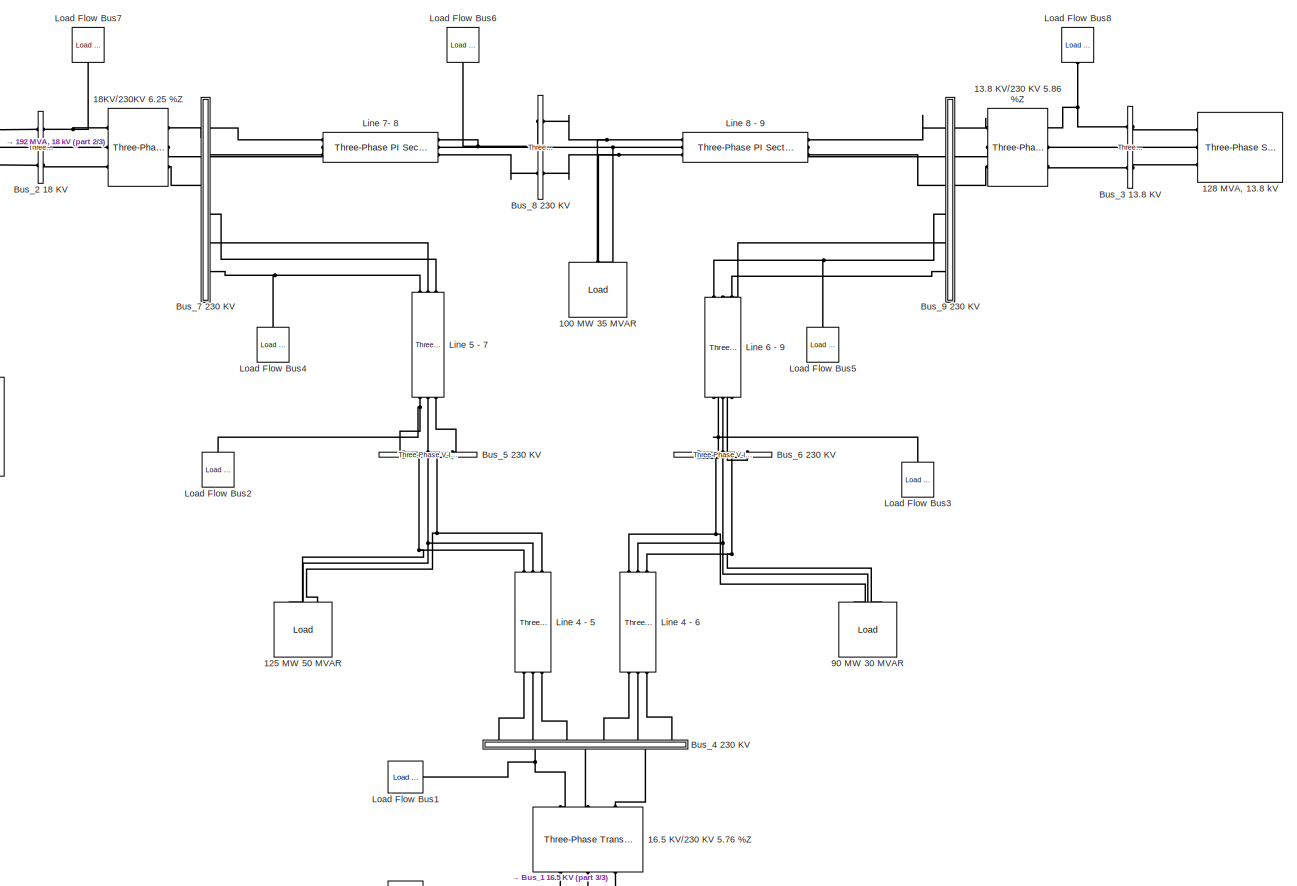
[diagram: root canvas - part 1/3, most of the canvas]
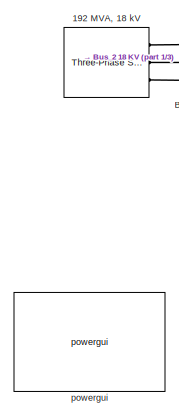
[diagram: root canvas - part 2/3, top left region]
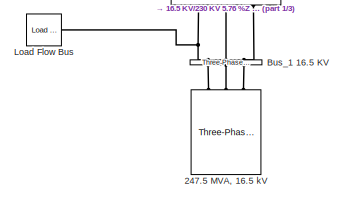
[diagram: root canvas - part 3/3, bottom center region]
MODEL slx_fed9710955e4
KIND model
BLOCK [Reference]  Line 4 - 6  REF=powerlib/Elements/Three-Phase
PI Section Line
  AttributesFormatString = \n
  Capacitances = [7.922e-9 4.74e-9]
  Frequency = 60
  Inductances = [ 1.29e-3  3.22e-3]
  LConnTagsString = a|b|c
  Length = 100
  Ports = [0, 0, 0, 0, 0, 3, 3]
  RConnTagsString = A|B|C
  Resistances = [ 0.08993 0.224825]
  SourceBlock = powerlib/Elements/Three-Phase\nPI Section Line
  SourceType = Three-Phase PI Section Line
BLOCK [Reference]  Line 6 - 9  REF=powerlib/Elements/Three-Phase
PI Section Line
  AttributesFormatString = \n
  Capacitances = [17.95e-9 10.55e-9]
  Frequency = 60
  Inductances = [ 2.38e-3  6.09e-3]
  LConnTagsString = a|b|c
  Length = 100
  Ports = [0, 0, 0, 0, 0, 3, 3]
  RConnTagsString = A|B|C
  Resistances = [ 0.20631 0.5157]
  SourceBlock = powerlib/Elements/Three-Phase\nPI Section Line
  SourceType = Three-Phase PI Section Line
BLOCK [Reference] 100 MW 35 MVAR  REF=jailib/Load  (lib defined in slx_75b92f426bfb)
  FunctionWithSeparateData = off
  GeneratePreprocessorConditionals = off
  Ports = [0, 0, 0, 0, 0, 3]
  ShowPortLabels = FromPortBlockName
  SourceBlock = jailib/Load
  SystemSampleTime = -1
BLOCK [Reference] 125 MW 50 MVAR  REF=jailib/Load  (lib defined in slx_75b92f426bfb)
  FunctionWithSeparateData = off
  GeneratePreprocessorConditionals = off
  Ports = [0, 0, 0, 0, 0, 3]
  ShowPortLabels = FromPortBlockName
  SourceBlock = jailib/Load
  SystemSampleTime = -1
BLOCK [Reference] 128 MVA, 13.8 kV  REF=powerlib/Electrical
Sources/Three-Phase Source
  BaseVoltage = 13.8e3
  BusType = PV
  Frequency = 60
  Inductance = 0.0140
  InternalConnection = Yg
  PhaseAngle = 0
  Ports = [0, 0, 0, 0, 0, 0, 3]
  Pref = 85000000
  Qmax = inf
  Qmin = -inf
  Qref = 0
  Resistance = 0.529
  ShortCircuitLevel = 128e6
  SourceBlock = powerlib/Electrical\nSources/Three-Phase Source
  SourceType = Three-Phase Source
  SpecifyImpedance = on
  Voltage = 13800
  XRratio = 100000
BLOCK [Reference] 13.8 KV//230 KV 5.86 %Z  REF=powerlib/Elements/Three-Phase
Transformer
(Two Windings)
  BreakLoop = off
  DataFile = 'hysteresis'
  DataType = off
  Hysteresis = off
  InitialFluxes = [ 0.8 , -0.8 , 0.7 ]
  Lm = 500
  Measurements = None
  MoreParameters = off
  NominalPower = [ 100e6 , 60 ]
  Ports = [0, 0, 0, 0, 0, 3, 3]
  Rm = 500
  Saturation = [ 0,0 ; 0.0024,1.2 ; 1.0,1.52 ]
  SetInitialFlux = off
  SetSaturation = off
  SourceBlock = powerlib/Elements/Three-Phase\nTransformer\n(Two Windings)
  SourceType = Three-Phase Transformer (Two Windings)
  TransfoNumber = 1
  UNITS = pu
  Winding1 = [ 13.8e3 , 1e-6 , 0 ]
  Winding1Connection = Yg
  Winding2 = [ 230e3 , 1e-6, 0.0586 ]
  Winding2Connection = Yg
BLOCK [Reference] 16.5 KV//230 KV 5.76 %Z       REF=powerlib/Elements/Three-Phase
Transformer
(Two Windings)
  BreakLoop = off
  DataFile = 'hysteresis'
  DataType = off
  Hysteresis = off
  InitialFluxes = [ 0.8 , -0.8 , 0.7 ]
  Lm = 500
  Measurements = None
  MoreParameters = off
  NominalPower = [ 100e6 , 60 ]
  Ports = [0, 0, 0, 0, 0, 3, 3]
  Rm = 500
  Saturation = [ 0,0 ; 0.0024,1.2 ; 1.0,1.52 ]
  SetInitialFlux = off
  SetSaturation = off
  SourceBlock = powerlib/Elements/Three-Phase\nTransformer\n(Two Windings)
  SourceType = Three-Phase Transformer (Two Windings)
  TransfoNumber = 1
  UNITS = pu
  Winding1 = [ 16.5e3 , 1e-6, 0 ]
  Winding1Connection = Yg
  Winding2 = [ 230e3 ,1e-6, 0.0576 ]
  Winding2Connection = Yg
BLOCK [Reference] 18KV//230KV 6.25 %Z  REF=powerlib/Elements/Three-Phase
Transformer
(Two Windings)
  BreakLoop = off
  DataFile = 'hysteresis'
  DataType = off
  Hysteresis = off
  InitialFluxes = [ 0.8 , -0.8 , 0.7 ]
  Lm = 500
  Measurements = None
  MoreParameters = off
  NominalPower = [ 100e6 , 60 ]
  Ports = [0, 0, 0, 0, 0, 3, 3]
  Rm = 500
  Saturation = [ 0,0 ; 0.0024,1.2 ; 1.0,1.52 ]
  SetInitialFlux = off
  SetSaturation = off
  SourceBlock = powerlib/Elements/Three-Phase\nTransformer\n(Two Windings)
  SourceType = Three-Phase Transformer (Two Windings)
  TransfoNumber = 1
  UNITS = pu
  Winding1 = [ 18e3 , 1e-6 , 0]
  Winding1Connection = Yg
  Winding2 = [ 230e3 , 1e-6, 0.0625 ]
  Winding2Connection = Yg
BLOCK [Reference] 192 MVA, 18 kV  REF=powerlib/Electrical
Sources/Three-Phase Source
  BaseVoltage = 18e3
  BusType = PV
  Frequency = 60
  Inductance = 0.0140
  InternalConnection = Yg
  PhaseAngle = 0
  Ports = [0, 0, 0, 0, 0, 0, 3]
  Pref = 163000000
  Qmax = inf
  Qmin = -inf
  Qref = 0
  Resistance = 0.529
  ShortCircuitLevel = 192e6
  SourceBlock = powerlib/Electrical\nSources/Three-Phase Source
  SourceType = Three-Phase Source
  SpecifyImpedance = on
  Voltage = 18000
  XRratio = 100000
BLOCK [Reference] 247.5 MVA, 16.5 kV  REF=powerlib/Electrical
Sources/Three-Phase Source
  BaseVoltage = 16.5e3
  BusType = swing
  Frequency = 60
  Inductance = 0.0140
  InternalConnection = Yg
  PhaseAngle = 0
  Ports = [0, 0, 0, 0, 0, 0, 3]
  Pref = 0
  Qmax = Inf
  Qmin = -Inf
  Qref = 0
  Resistance = 0.529
  ShortCircuitLevel = 247.5e6
  SourceBlock = powerlib/Electrical\nSources/Three-Phase Source
  SourceType = Three-Phase Source
  SpecifyImpedance = on
  Voltage = 16500
  XRratio = 100000
BLOCK [Reference] 90 MW 30 MVAR  REF=jailib/Load  (lib defined in slx_75b92f426bfb)
  FunctionWithSeparateData = off
  GeneratePreprocessorConditionals = off
  Ports = [0, 0, 0, 0, 0, 3]
  ShowPortLabels = FromPortBlockName
  SourceBlock = jailib/Load
  SystemSampleTime = -1
BLOCK [Reference] Bus_1 16.5 KV  REF=powerlib/Measurements/Three-Phase
V-I Measurement
  CurrentMeasurement = yes
  Ipu = on
  LabelI = Iabc_1
  LabelV = Vabc_1
  OutputType = Complex
  PSBequivalent = 0
  Pbase = 100e6
  PhasorSimulation = off
  Ports = [0, 0, 0, 0, 0, 3, 3]
  SetLabelI = on
  SetLabelV = on
  SourceBlock = powerlib/Measurements/Three-Phase\nV-I Measurement
  SourceType = Three-Phase VI Measurement
  Vbase = 16.5e3
  VoltageMeasurement = phase-to-ground
  Vpu = on
  VpuLL = off
BLOCK [Reference] Bus_2 18 KV  REF=powerlib/Measurements/Three-Phase
V-I Measurement
  CurrentMeasurement = yes
  Ipu = on
  LabelI = Iabc_2
  LabelV = Vabc_2
  OutputType = Complex
  PSBequivalent = 0
  Pbase = 100e6
  PhasorSimulation = off
  Ports = [0, 0, 0, 0, 0, 3, 3]
  SetLabelI = on
  SetLabelV = on
  SourceBlock = powerlib/Measurements/Three-Phase\nV-I Measurement
  SourceType = Three-Phase VI Measurement
  Vbase = 18e3
  VoltageMeasurement = phase-to-ground
  Vpu = on
  VpuLL = off
BLOCK [Reference] Bus_3 13.8 KV  REF=powerlib/Measurements/Three-Phase
V-I Measurement
  CurrentMeasurement = yes
  Ipu = on
  LabelI = Iabc_3
  LabelV = Vabc_3
  OutputType = Complex
  PSBequivalent = 0
  Pbase = 100e6
  PhasorSimulation = off
  Ports = [0, 0, 0, 0, 0, 3, 3]
  SetLabelI = on
  SetLabelV = on
  SourceBlock = powerlib/Measurements/Three-Phase\nV-I Measurement
  SourceType = Three-Phase VI Measurement
  Vbase = 13.8e3
  VoltageMeasurement = phase-to-ground
  Vpu = on
  VpuLL = off
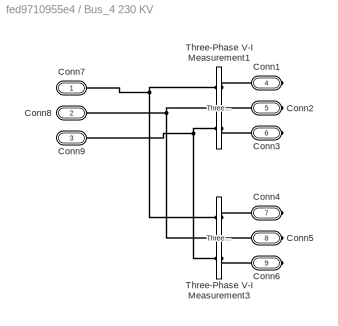
BLOCK [SubSystem] Bus_4 230 KV
  FunctionWithSeparateData = off
  MaskHideContents = off
  MinAlgLoopOccurrences = off
  Opaque = off
  Ports = [0, 0, 0, 0, 0, 3, 6]
  PropExecContextOutsideSubsystem = off
  RTWSystemCode = Auto
  RequestExecContextInheritance = off
BLOCK [PMIOPort] Bus_4 230 KV/Conn1
  Port = 4
  Side = Right
BLOCK [PMIOPort] Bus_4 230 KV/Conn2
  Port = 5
  Side = Right
BLOCK [PMIOPort] Bus_4 230 KV/Conn3
  Port = 6
  Side = Right
BLOCK [PMIOPort] Bus_4 230 KV/Conn4
  Port = 7
  Side = Right
BLOCK [PMIOPort] Bus_4 230 KV/Conn5
  Port = 8
  Side = Right
BLOCK [PMIOPort] Bus_4 230 KV/Conn6
  Port = 9
  Side = Right
BLOCK [PMIOPort] Bus_4 230 KV/Conn7
  Port = 1
  Side = Left
BLOCK [PMIOPort] Bus_4 230 KV/Conn8
  Port = 2
  Side = Left
BLOCK [PMIOPort] Bus_4 230 KV/Conn9
  Port = 3
  Side = Left
BLOCK [Reference] Bus_4 230 KV/Three-Phase V-I Measurement1  REF=powerlib/Measurements/Three-Phase
V-I Measurement
  CurrentMeasurement = yes
  Ipu = on
  LabelI = Iabc_45
  LabelV = Vabc_45
  OutputType = Complex
  PSBequivalent = 0
  Pbase = 100e6
  PhasorSimulation = off
  Ports = [0, 0, 0, 0, 0, 3, 3]
  SetLabelI = on
  SetLabelV = on
  SourceBlock = powerlib/Measurements/Three-Phase\nV-I Measurement
  SourceType = Three-Phase VI Measurement
  Vbase = 230e3
  VoltageMeasurement = phase-to-ground
  Vpu = on
  VpuLL = off
BLOCK [Reference] Bus_4 230 KV/Three-Phase V-I Measurement3  REF=powerlib/Measurements/Three-Phase
V-I Measurement
  CurrentMeasurement = yes
  Ipu = on
  LabelI = Iabc_46
  LabelV = Vabc_46
  OutputType = Complex
  PSBequivalent = 0
  Pbase = 100e6
  PhasorSimulation = off
  Ports = [0, 0, 0, 0, 0, 3, 3]
  SetLabelI = on
  SetLabelV = on
  SourceBlock = powerlib/Measurements/Three-Phase\nV-I Measurement
  SourceType = Three-Phase VI Measurement
  Vbase = 230e3
  VoltageMeasurement = phase-to-ground
  Vpu = on
  VpuLL = off
BLOCK [Reference] Bus_5 230 KV  REF=powerlib/Measurements/Three-Phase
V-I Measurement
  CurrentMeasurement = yes
  Ipu = on
  LabelI = Iabc_5
  LabelV = Vabc_5
  OutputType = Complex
  PSBequivalent = 0
  Pbase = 100e6
  PhasorSimulation = off
  Ports = [0, 0, 0, 0, 0, 3, 3]
  SetLabelI = on
  SetLabelV = on
  SourceBlock = powerlib/Measurements/Three-Phase\nV-I Measurement
  SourceType = Three-Phase VI Measurement
  Vbase = 230e3
  VoltageMeasurement = phase-to-ground
  Vpu = on
  VpuLL = off
BLOCK [Reference] Bus_6 230 KV  REF=powerlib/Measurements/Three-Phase
V-I Measurement
  CurrentMeasurement = yes
  Ipu = on
  LabelI = Iabc_6
  LabelV = Vabc_6
  OutputType = Complex
  PSBequivalent = 0
  Pbase = 100e6
  PhasorSimulation = off
  Ports = [0, 0, 0, 0, 0, 3, 3]
  SetLabelI = on
  SetLabelV = on
  SourceBlock = powerlib/Measurements/Three-Phase\nV-I Measurement
  SourceType = Three-Phase VI Measurement
  Vbase = 230e3
  VoltageMeasurement = phase-to-ground
  Vpu = on
  VpuLL = off
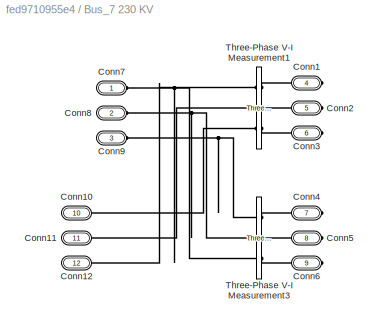
BLOCK [SubSystem] Bus_7 230 KV
  FunctionWithSeparateData = off
  MaskHideContents = off
  MinAlgLoopOccurrences = off
  Opaque = off
  Ports = [0, 0, 0, 0, 0, 6, 6]
  PropExecContextOutsideSubsystem = off
  RTWSystemCode = Auto
  RequestExecContextInheritance = off
BLOCK [PMIOPort] Bus_7 230 KV/Conn1
  Port = 4
  Side = Right
BLOCK [PMIOPort] Bus_7 230 KV/Conn10
  Port = 10
  Side = Left
BLOCK [PMIOPort] Bus_7 230 KV/Conn11
  Port = 11
  Side = Left
BLOCK [PMIOPort] Bus_7 230 KV/Conn12
  Port = 12
  Side = Left
BLOCK [PMIOPort] Bus_7 230 KV/Conn2
  Port = 5
  Side = Right
BLOCK [PMIOPort] Bus_7 230 KV/Conn3
  Port = 6
  Side = Right
BLOCK [PMIOPort] Bus_7 230 KV/Conn4
  Port = 7
  Side = Right
BLOCK [PMIOPort] Bus_7 230 KV/Conn5
  Port = 8
  Side = Right
BLOCK [PMIOPort] Bus_7 230 KV/Conn6
  Port = 9
  Side = Right
BLOCK [PMIOPort] Bus_7 230 KV/Conn7
  Port = 1
  Side = Left
BLOCK [PMIOPort] Bus_7 230 KV/Conn8
  Port = 2
  Side = Left
BLOCK [PMIOPort] Bus_7 230 KV/Conn9
  Port = 3
  Side = Left
BLOCK [Reference] Bus_7 230 KV/Three-Phase V-I Measurement1  REF=powerlib/Measurements/Three-Phase
V-I Measurement
  CurrentMeasurement = yes
  Ipu = on
  LabelI = Iabc_7
  LabelV = Vabc_7
  OutputType = Complex
  PSBequivalent = 0
  Pbase = 100e6
  PhasorSimulation = off
  Ports = [0, 0, 0, 0, 0, 3, 3]
  SetLabelI = on
  SetLabelV = on
  SourceBlock = powerlib/Measurements/Three-Phase\nV-I Measurement
  SourceType = Three-Phase VI Measurement
  Vbase = 230e3
  VoltageMeasurement = phase-to-ground
  Vpu = on
  VpuLL = off
BLOCK [Reference] Bus_7 230 KV/Three-Phase V-I Measurement3  REF=powerlib/Measurements/Three-Phase
V-I Measurement
  CurrentMeasurement = yes
  Ipu = on
  LabelI = Iab
  LabelV = Vab
  OutputType = Complex
  PSBequivalent = 0
  Pbase = 100e6
  PhasorSimulation = off
  Ports = [0, 0, 0, 0, 0, 3, 3]
  SetLabelI = on
  SetLabelV = on
  SourceBlock = powerlib/Measurements/Three-Phase\nV-I Measurement
  SourceType = Three-Phase VI Measurement
  Vbase = 230e3
  VoltageMeasurement = phase-to-ground
  Vpu = on
  VpuLL = off
BLOCK [Reference] Bus_8 230 KV  REF=powerlib/Measurements/Three-Phase
V-I Measurement
  CurrentMeasurement = yes
  Ipu = on
  LabelI = Iabc_8
  LabelV = Vabc_8
  OutputType = Complex
  PSBequivalent = 0
  Pbase = 100e6
  PhasorSimulation = off
  Ports = [0, 0, 0, 0, 0, 3, 3]
  SetLabelI = on
  SetLabelV = on
  SourceBlock = powerlib/Measurements/Three-Phase\nV-I Measurement
  SourceType = Three-Phase VI Measurement
  Vbase = 230e3
  VoltageMeasurement = phase-to-ground
  Vpu = on
  VpuLL = off
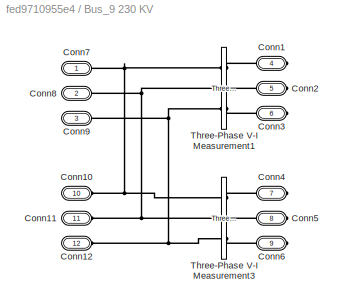
BLOCK [SubSystem] Bus_9 230 KV
  FunctionWithSeparateData = off
  MaskHideContents = off
  MinAlgLoopOccurrences = off
  Opaque = off
  Ports = [0, 0, 0, 0, 0, 6, 6]
  PropExecContextOutsideSubsystem = off
  RTWSystemCode = Auto
  RequestExecContextInheritance = off
BLOCK [PMIOPort] Bus_9 230 KV/Conn1
  Port = 4
  Side = Right
BLOCK [PMIOPort] Bus_9 230 KV/Conn10
  Port = 10
  Side = Left
BLOCK [PMIOPort] Bus_9 230 KV/Conn11
  Port = 11
  Side = Left
BLOCK [PMIOPort] Bus_9 230 KV/Conn12
  Port = 12
  Side = Left
BLOCK [PMIOPort] Bus_9 230 KV/Conn2
  Port = 5
  Side = Right
BLOCK [PMIOPort] Bus_9 230 KV/Conn3
  Port = 6
  Side = Right
BLOCK [PMIOPort] Bus_9 230 KV/Conn4
  Port = 7
  Side = Right
BLOCK [PMIOPort] Bus_9 230 KV/Conn5
  Port = 8
  Side = Right
BLOCK [PMIOPort] Bus_9 230 KV/Conn6
  Port = 9
  Side = Right
BLOCK [PMIOPort] Bus_9 230 KV/Conn7
  Port = 1
  Side = Left
BLOCK [PMIOPort] Bus_9 230 KV/Conn8
  Port = 2
  Side = Left
BLOCK [PMIOPort] Bus_9 230 KV/Conn9
  Port = 3
  Side = Left
BLOCK [Reference] Bus_9 230 KV/Three-Phase V-I Measurement1  REF=powerlib/Measurements/Three-Phase
V-I Measurement
  CurrentMeasurement = yes
  Ipu = on
  LabelI = Iabc_9
  LabelV = Vabc_9
  OutputType = Complex
  PSBequivalent = 0
  Pbase = 100e6
  PhasorSimulation = off
  Ports = [0, 0, 0, 0, 0, 3, 3]
  SetLabelI = on
  SetLabelV = on
  SourceBlock = powerlib/Measurements/Three-Phase\nV-I Measurement
  SourceType = Three-Phase VI Measurement
  Vbase = 230e3
  VoltageMeasurement = phase-to-ground
  Vpu = on
  VpuLL = off
BLOCK [Reference] Bus_9 230 KV/Three-Phase V-I Measurement3  REF=powerlib/Measurements/Three-Phase
V-I Measurement
  CurrentMeasurement = yes
  Ipu = on
  LabelI = Iabc
  LabelV = Vabc
  OutputType = Complex
  PSBequivalent = 0
  Pbase = 100e6
  PhasorSimulation = off
  Ports = [0, 0, 0, 0, 0, 3, 3]
  SetLabelI = on
  SetLabelV = on
  SourceBlock = powerlib/Measurements/Three-Phase\nV-I Measurement
  SourceType = Three-Phase VI Measurement
  Vbase = 230e3
  VoltageMeasurement = phase-to-ground
  Vpu = on
  VpuLL = off
BLOCK [Reference] Line 4 - 5   REF=powerlib/Elements/Three-Phase
PI Section Line
  AttributesFormatString = \n
  Capacitances = [8.82e-9 5.188e-9]
  Frequency = 60
  Inductances = [ 1.192e-3  2.38e-3]
  LConnTagsString = a|b|c
  Length = 100
  Ports = [0, 0, 0, 0, 0, 3, 3]
  RConnTagsString = A|B|C
  Resistances = [ 0.0529 0.13225]
  SourceBlock = powerlib/Elements/Three-Phase\nPI Section Line
  SourceType = Three-Phase PI Section Line
BLOCK [Reference] Line 5 - 7   REF=powerlib/Elements/Three-Phase
PI Section Line
  AttributesFormatString = \n
  Capacitances = [15.34e-9 9.025e-9]
  Frequency = 60
  Inductances = [ 2.259e-3  5.64e-3]
  LConnTagsString = a|b|c
  Length = 100
  Ports = [0, 0, 0, 0, 0, 3, 3]
  RConnTagsString = A|B|C
  Resistances = [ 0.16928 0.4232]
  SourceBlock = powerlib/Elements/Three-Phase\nPI Section Line
  SourceType = Three-Phase PI Section Line
BLOCK [Reference] Line 7- 8  REF=powerlib/Elements/Three-Phase
PI Section Line
  AttributesFormatString = \n
  Capacitances = [7.471e-9 4.394e-9]
  Frequency = 60
  Inductances = [ 1.01e-3  2.02e-3]
  LConnTagsString = a|b|c
  Length = 100
  Ports = [0, 0, 0, 0, 0, 3, 3]
  RConnTagsString = A|B|C
  Resistances = [0.044965 0.11241]
  SourceBlock = powerlib/Elements/Three-Phase\nPI Section Line
  SourceType = Three-Phase PI Section Line
BLOCK [Reference] Line 8 - 9  REF=powerlib/Elements/Three-Phase
PI Section Line
  AttributesFormatString = \n
  Capacitances = [10.47e-9 6.15e-9]
  Frequency = 60
  Inductances = [ 1.414e-3  3.53e-3]
  LConnTagsString = a|b|c
  Length = 100
  Ports = [0, 0, 0, 0, 0, 3, 3]
  RConnTagsString = A|B|C
  Resistances = [ 0.062951 0.15737]
  SourceBlock = powerlib/Elements/Three-Phase\nPI Section Line
  SourceType = Three-Phase PI Section Line
BLOCK [Reference] Load Flow Bus  REF=powerlib/Measurements/Load Flow Bus
  AttributesFormatString = %<ID>\n%<Vbase>V\n%<VLF>pu\n%<angleLF>deg.
  ID = BUS_1
  LConnTagsString = a
  Ports = [0, 0, 0, 0, 0, 1]
  SourceBlock = powerlib/Measurements/Load Flow Bus
  SourceType = Load Flow Bus
  VLF = 1.04
  Vangle = 0
  Vbase = 16.5e3
  Vref = 1.04
  angleLF = 0
BLOCK [Reference] Load Flow Bus1  REF=powerlib/Measurements/Load Flow Bus
  AttributesFormatString = %<ID>\n%<Vbase>V\n%<VLF>pu\n%<angleLF>deg.
  ID = BUS_4
  LConnTagsString = a
  Ports = [0, 0, 0, 0, 0, 1]
  SourceBlock = powerlib/Measurements/Load Flow Bus
  SourceType = Load Flow Bus
  VLF = 1.026
  Vangle = 0
  Vbase = 230e3
  Vref = 1
  angleLF = -2.226
BLOCK [Reference] Load Flow Bus2  REF=powerlib/Measurements/Load Flow Bus
  AttributesFormatString = %<ID>\n%<Vbase>V\n%<VLF>pu\n%<angleLF>deg.
  ID = BUS_5
  LConnTagsString = a
  Ports = [0, 0, 0, 0, 0, 1]
  SourceBlock = powerlib/Measurements/Load Flow Bus
  SourceType = Load Flow Bus
  VLF = 0.9962
  Vangle = 0
  Vbase = 230e3
  Vref = 1
  angleLF = -4.002
BLOCK [Reference] Load Flow Bus3  REF=powerlib/Measurements/Load Flow Bus
  AttributesFormatString = %<ID>\n%<Vbase>V\n%<VLF>pu\n%<angleLF>deg.
  ID = BUS_6
  LConnTagsString = a
  Ports = [0, 0, 0, 0, 0, 1]
  SourceBlock = powerlib/Measurements/Load Flow Bus
  SourceType = Load Flow Bus
  VLF = 1.013
  Vangle = 0
  Vbase = 230e3
  Vref = 1
  angleLF = -3.701
BLOCK [Reference] Load Flow Bus4  REF=powerlib/Measurements/Load Flow Bus
  AttributesFormatString = %<ID>\n%<Vbase>V\n%<VLF>pu\n%<angleLF>deg.
  ID = BUS_7
  LConnTagsString = a
  Ports = [0, 0, 0, 0, 0, 1]
  SourceBlock = powerlib/Measurements/Load Flow Bus
  SourceType = Load Flow Bus
  VLF = 1.026
  Vangle = 0
  Vbase = 230e3
  Vref = 1
  angleLF = 3.62
BLOCK [Reference] Load Flow Bus5  REF=powerlib/Measurements/Load Flow Bus
  AttributesFormatString = %<ID>\n%<Vbase>V\n%<VLF>pu\n%<angleLF>deg.
  ID = BUS_9
  LConnTagsString = a
  Ports = [0, 0, 0, 0, 0, 1]
  SourceBlock = powerlib/Measurements/Load Flow Bus
  SourceType = Load Flow Bus
  VLF = 1.032
  Vangle = 0
  Vbase = 230e3
  Vref = 1
  angleLF = 1.867
BLOCK [Reference] Load Flow Bus6  REF=powerlib/Measurements/Load Flow Bus
  AttributesFormatString = %<ID>\n%<Vbase>V\n%<VLF>pu\n%<angleLF>deg.
  ID = BUS_8
  LConnTagsString = a
  Ports = [0, 0, 0, 0, 0, 1]
  SourceBlock = powerlib/Measurements/Load Flow Bus
  SourceType = Load Flow Bus
  VLF = 1.016
  Vangle = 0
  Vbase = 230e3
  Vref = 1
  angleLF = 0.6336
BLOCK [Reference] Load Flow Bus7  REF=powerlib/Measurements/Load Flow Bus
  AttributesFormatString = %<ID>\n%<Vbase>V\n%<VLF>pu\n%<angleLF>deg.
  ID = BUS_2
  LConnTagsString = a
  Ports = [0, 0, 0, 0, 0, 1]
  SourceBlock = powerlib/Measurements/Load Flow Bus
  SourceType = Load Flow Bus
  VLF = 1.025
  Vangle = 0
  Vbase = 18e3
  Vref = 1.025
  angleLF = 9.173
BLOCK [Reference] Load Flow Bus8  REF=powerlib/Measurements/Load Flow Bus
  AttributesFormatString = %<ID>\n%<Vbase>V\n%<VLF>pu\n%<angleLF>deg.
  ID = BUS_3
  LConnTagsString = a
  Ports = [0, 0, 0, 0, 0, 1]
  SourceBlock = powerlib/Measurements/Load Flow Bus
  SourceType = Load Flow Bus
  VLF = 1.025
  Vangle = 0
  Vbase = 13.8e3
  Vref = 1.025
  angleLF = 4.558
BLOCK [Reference] powergui  REF=powerlib/powergui
  DisableRonSwitches = off
  DisableSnubberDevices = off
  DisableVfSwitches = off
  DisplayEquations = off
  DisplayStyle = 1
  EnableUseOfTLC = off
  ErrMax = 1e-05
  Frange = [0:2:500]
  FreqAxis = off
  FunctionMessages = off
  HookPort = off
  Interpol = off
  Iterations = 50
  MaxFrequency = 1000
  Pbase = 10e7
  Ports = []
  Priority = 1
  ResistiveCurrentMeasurement = off
  RestoreLinks = warning
  RmsSteady = 1
  SPID = off
  SampleTime = 50e-6
  ShowGrid = off
  SolverType = Tustin
  SourceBlock = powerlib/powergui
  SourceType = PSB option menu block
  StartTime = 0.0
  SwTol = 0
  Ts = 0
  UnitsV = kV
  UnitsW = MW
  UserDataPersistent = on
  Xlog = on
  Ylog = off
  ZoomFFT = off
  cycles = 1
  display = off
  echomessages = off
  frequency = 60
  frequencyindice = 60
  frequencyindicesteady = 1
  fundamental = 60
  methode = off
  save = off
  variable = ZData
  x0status = blocks
PNET net1:  Line 4 - 6:LConn1 -- 90 MW 30 MVAR:LConn1 -- Bus_6 230 KV:RConn1
PNET net2:  Line 4 - 6:LConn2 -- 90 MW 30 MVAR:LConn2 -- Bus_6 230 KV:RConn2
PNET net3:  Line 4 - 6:LConn3 -- 90 MW 30 MVAR:LConn3 -- Bus_6 230 KV:RConn3
PLINE  Line 4 - 6:RConn1 -- Bus_4 230 KV:RConn4
PLINE  Line 4 - 6:RConn2 -- Bus_4 230 KV:RConn5
PLINE  Line 4 - 6:RConn3 -- Bus_4 230 KV:RConn6
PNET net4:  Line 6 - 9:LConn1 -- Bus_6 230 KV:LConn1 -- Load Flow Bus3:LConn1
PLINE  Line 6 - 9:LConn2 -- Bus_6 230 KV:LConn2
PLINE  Line 6 - 9:LConn3 -- Bus_6 230 KV:LConn3
PNET net5:  Line 6 - 9:RConn1 -- Bus_9 230 KV:LConn4 -- Load Flow Bus5:LConn1
PLINE  Line 6 - 9:RConn2 -- Bus_9 230 KV:LConn5
PLINE  Line 6 - 9:RConn3 -- Bus_9 230 KV:LConn6
PNET net6: 100 MW 35 MVAR:LConn1 -- Bus_8 230 KV:LConn1 -- Line 8 - 9:LConn1
PNET net7: 100 MW 35 MVAR:LConn2 -- Bus_8 230 KV:LConn2 -- Line 8 - 9:LConn2
PNET net8: 100 MW 35 MVAR:LConn3 -- Bus_8 230 KV:LConn3 -- Line 8 - 9:LConn3
PNET net9: 125 MW 50 MVAR:LConn1 -- Bus_5 230 KV:RConn1 -- Line 4 - 5 :LConn1
PNET net10: 125 MW 50 MVAR:LConn2 -- Bus_5 230 KV:RConn2 -- Line 4 - 5 :LConn2
PNET net11: 125 MW 50 MVAR:LConn3 -- Bus_5 230 KV:RConn3 -- Line 4 - 5 :LConn3
PLINE 128 MVA, 13.8 kV:RConn1 -- Bus_3 13.8 KV:RConn1
PLINE 128 MVA, 13.8 kV:RConn2 -- Bus_3 13.8 KV:RConn2
PLINE 128 MVA, 13.8 kV:RConn3 -- Bus_3 13.8 KV:RConn3
PNET net12: 13.8 KV//230 KV 5.86 %Z:LConn1 -- Bus_3 13.8 KV:LConn1 -- Load Flow Bus8:LConn1
PLINE 13.8 KV//230 KV 5.86 %Z:LConn2 -- Bus_3 13.8 KV:LConn2
PLINE 13.8 KV//230 KV 5.86 %Z:LConn3 -- Bus_3 13.8 KV:LConn3
PLINE 13.8 KV//230 KV 5.86 %Z:RConn1 -- Bus_9 230 KV:RConn1
PLINE 13.8 KV//230 KV 5.86 %Z:RConn2 -- Bus_9 230 KV:RConn2
PLINE 13.8 KV//230 KV 5.86 %Z:RConn3 -- Bus_9 230 KV:RConn3
PNET net13: 16.5 KV//230 KV 5.76 %Z     :LConn1 -- Bus_1 16.5 KV:LConn1 -- Load Flow Bus:LConn1
PLINE 16.5 KV//230 KV 5.76 %Z     :LConn2 -- Bus_1 16.5 KV:LConn2
PLINE 16.5 KV//230 KV 5.76 %Z     :LConn3 -- Bus_1 16.5 KV:LConn3
PNET net14: 16.5 KV//230 KV 5.76 %Z     :RConn1 -- Bus_4 230 KV:LConn1 -- Load Flow Bus1:LConn1
PLINE 16.5 KV//230 KV 5.76 %Z     :RConn2 -- Bus_4 230 KV:LConn2
PLINE 16.5 KV//230 KV 5.76 %Z     :RConn3 -- Bus_4 230 KV:LConn3
PNET net15: 18KV//230KV 6.25 %Z:LConn1 -- Bus_2 18 KV:RConn1 -- Load Flow Bus7:LConn1
PLINE 18KV//230KV 6.25 %Z:LConn2 -- Bus_2 18 KV:RConn2
PLINE 18KV//230KV 6.25 %Z:LConn3 -- Bus_2 18 KV:RConn3
PLINE 18KV//230KV 6.25 %Z:RConn1 -- Bus_7 230 KV:LConn1
PLINE 18KV//230KV 6.25 %Z:RConn2 -- Bus_7 230 KV:LConn2
PLINE 18KV//230KV 6.25 %Z:RConn3 -- Bus_7 230 KV:LConn3
PLINE 192 MVA, 18 kV:RConn1 -- Bus_2 18 KV:LConn1
PLINE 192 MVA, 18 kV:RConn2 -- Bus_2 18 KV:LConn2
PLINE 192 MVA, 18 kV:RConn3 -- Bus_2 18 KV:LConn3
PLINE 247.5 MVA, 16.5 kV:RConn1 -- Bus_1 16.5 KV:RConn1
PLINE 247.5 MVA, 16.5 kV:RConn2 -- Bus_1 16.5 KV:RConn2
PLINE 247.5 MVA, 16.5 kV:RConn3 -- Bus_1 16.5 KV:RConn3
PLINE Bus_4 230 KV/Conn1:RConn1 -- Bus_4 230 KV/Three-Phase V-I Measurement1:RConn1
PLINE Bus_4 230 KV/Conn2:RConn1 -- Bus_4 230 KV/Three-Phase V-I Measurement1:RConn2
PLINE Bus_4 230 KV/Conn3:RConn1 -- Bus_4 230 KV/Three-Phase V-I Measurement1:RConn3
PLINE Bus_4 230 KV/Conn4:RConn1 -- Bus_4 230 KV/Three-Phase V-I Measurement3:RConn1
PLINE Bus_4 230 KV/Conn5:RConn1 -- Bus_4 230 KV/Three-Phase V-I Measurement3:RConn2
PLINE Bus_4 230 KV/Conn6:RConn1 -- Bus_4 230 KV/Three-Phase V-I Measurement3:RConn3
PNET net16: Bus_4 230 KV/Conn7:RConn1 -- Bus_4 230 KV/Three-Phase V-I Measurement1:LConn1 -- Bus_4 230 KV/Three-Phase V-I Measurement3:LConn1
PNET net17: Bus_4 230 KV/Conn8:RConn1 -- Bus_4 230 KV/Three-Phase V-I Measurement1:LConn2 -- Bus_4 230 KV/Three-Phase V-I Measurement3:LConn2
PNET net18: Bus_4 230 KV/Conn9:RConn1 -- Bus_4 230 KV/Three-Phase V-I Measurement1:LConn3 -- Bus_4 230 KV/Three-Phase V-I Measurement3:LConn3
PLINE Bus_4 230 KV:RConn1 -- Line 4 - 5 :RConn1
PLINE Bus_4 230 KV:RConn2 -- Line 4 - 5 :RConn2
PLINE Bus_4 230 KV:RConn3 -- Line 4 - 5 :RConn3
PNET net19: Bus_5 230 KV:LConn1 -- Line 5 - 7 :RConn1 -- Load Flow Bus2:LConn1
PLINE Bus_5 230 KV:LConn2 -- Line 5 - 7 :RConn2
PLINE Bus_5 230 KV:LConn3 -- Line 5 - 7 :RConn3
PNET net20: Bus_7 230 KV/Conn10:RConn1 -- Bus_7 230 KV/Conn9:RConn1 -- Bus_7 230 KV/Three-Phase V-I Measurement1:LConn3 -- Bus_7 230 KV/Three-Phase V-I Measurement3:LConn1
PNET net21: Bus_7 230 KV/Conn11:RConn1 -- Bus_7 230 KV/Conn8:RConn1 -- Bus_7 230 KV/Three-Phase V-I Measurement1:LConn2 -- Bus_7 230 KV/Three-Phase V-I Measurement3:LConn2
PNET net22: Bus_7 230 KV/Conn12:RConn1 -- Bus_7 230 KV/Conn7:RConn1 -- Bus_7 230 KV/Three-Phase V-I Measurement1:LConn1 -- Bus_7 230 KV/Three-Phase V-I Measurement3:LConn3
PLINE Bus_7 230 KV/Conn1:RConn1 -- Bus_7 230 KV/Three-Phase V-I Measurement1:RConn1
PLINE Bus_7 230 KV/Conn2:RConn1 -- Bus_7 230 KV/Three-Phase V-I Measurement1:RConn2
PLINE Bus_7 230 KV/Conn3:RConn1 -- Bus_7 230 KV/Three-Phase V-I Measurement1:RConn3
PLINE Bus_7 230 KV/Conn4:RConn1 -- Bus_7 230 KV/Three-Phase V-I Measurement3:RConn1
PLINE Bus_7 230 KV/Conn5:RConn1 -- Bus_7 230 KV/Three-Phase V-I Measurement3:RConn2
PLINE Bus_7 230 KV/Conn6:RConn1 -- Bus_7 230 KV/Three-Phase V-I Measurement3:RConn3
PLINE Bus_7 230 KV:RConn1 -- Line 7- 8:LConn1
PLINE Bus_7 230 KV:RConn2 -- Line 7- 8:LConn2
PLINE Bus_7 230 KV:RConn3 -- Line 7- 8:LConn3
PLINE Bus_7 230 KV:RConn4 -- Line 5 - 7 :LConn3
PLINE Bus_7 230 KV:RConn5 -- Line 5 - 7 :LConn2
PNET net23: Bus_7 230 KV:RConn6 -- Line 5 - 7 :LConn1 -- Load Flow Bus4:LConn1
PNET net24: Bus_8 230 KV:RConn1 -- Line 7- 8:RConn1 -- Load Flow Bus6:LConn1
PLINE Bus_8 230 KV:RConn2 -- Line 7- 8:RConn2
PLINE Bus_8 230 KV:RConn3 -- Line 7- 8:RConn3
PNET net25: Bus_9 230 KV/Conn10:RConn1 -- Bus_9 230 KV/Conn7:RConn1 -- Bus_9 230 KV/Three-Phase V-I Measurement1:LConn1 -- Bus_9 230 KV/Three-Phase V-I Measurement3:LConn1
PNET net26: Bus_9 230 KV/Conn11:RConn1 -- Bus_9 230 KV/Conn8:RConn1 -- Bus_9 230 KV/Three-Phase V-I Measurement1:LConn2 -- Bus_9 230 KV/Three-Phase V-I Measurement3:LConn2
PNET net27: Bus_9 230 KV/Conn12:RConn1 -- Bus_9 230 KV/Conn9:RConn1 -- Bus_9 230 KV/Three-Phase V-I Measurement1:LConn3 -- Bus_9 230 KV/Three-Phase V-I Measurement3:LConn3
PLINE Bus_9 230 KV/Conn1:RConn1 -- Bus_9 230 KV/Three-Phase V-I Measurement1:RConn1
PLINE Bus_9 230 KV/Conn2:RConn1 -- Bus_9 230 KV/Three-Phase V-I Measurement1:RConn2
PLINE Bus_9 230 KV/Conn3:RConn1 -- Bus_9 230 KV/Three-Phase V-I Measurement1:RConn3
PLINE Bus_9 230 KV/Conn4:RConn1 -- Bus_9 230 KV/Three-Phase V-I Measurement3:RConn1
PLINE Bus_9 230 KV/Conn5:RConn1 -- Bus_9 230 KV/Three-Phase V-I Measurement3:RConn2
PLINE Bus_9 230 KV/Conn6:RConn1 -- Bus_9 230 KV/Three-Phase V-I Measurement3:RConn3
PLINE Bus_9 230 KV:LConn1 -- Line 8 - 9:RConn1
PLINE Bus_9 230 KV:LConn2 -- Line 8 - 9:RConn2
PLINE Bus_9 230 KV:LConn3 -- Line 8 - 9:RConn3
note: PNET lines group multi-terminal physical nets as a canonical sorted terminal list (undirected conserving connections); 2-terminal nets keep the pairwise PLINE form
